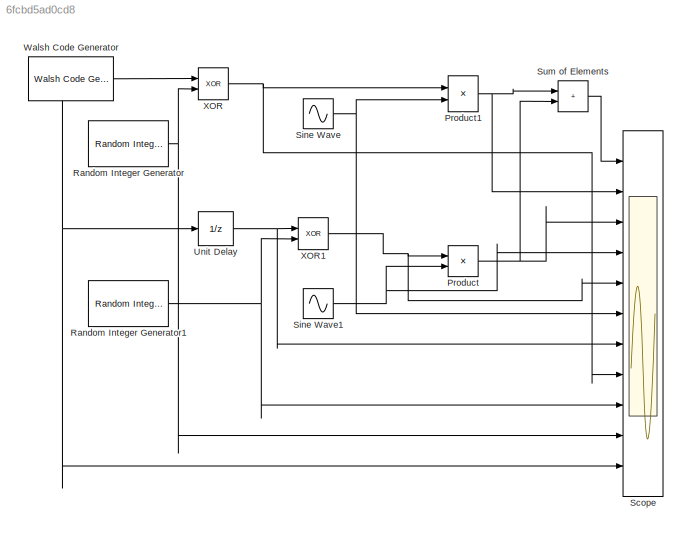
MODEL mdl_6fcbd5ad0cd8
KIND model
CONFIG AbsTol = auto
CONFIG EnableMultiTasking = off
CONFIG FixedStep = auto
CONFIG MaxStep = auto
CONFIG MinStep = auto
CONFIG RelTol = 1e-3
CONFIG SampleTimeConstraint = Unconstrained
CONFIG SolverName = VariableStepAuto
CONFIG StartTime = 0.0
CONFIG StopTime = 0.128
BLOCK [Product] Product
  Ports = [2, 1]
BLOCK [Product] Product1
  Ports = [2, 1]
BLOCK [Reference] Random Integer Generator  REF=commrandsrc3/Random Integer
Generator
  Ports = [0, 1]
  SourceBlock = commrandsrc3/Random Integer\nGenerator
  SourceProductBaseCode = CM
  SourceType = Random Integer Generator
BLOCK [Reference] Random Integer Generator1  REF=commrandsrc3/Random Integer
Generator
  Ports = [0, 1]
  SourceBlock = commrandsrc3/Random Integer\nGenerator
  SourceProductBaseCode = CM
  SourceType = Random Integer Generator
BLOCK [Scope] Scope
  Floating = off
  NumInputPorts = 11
  Ports = [11]
  ScopeSpecificationString = Simulink.scopes.TimeScopeBlockCfg('CurrentConfiguration', extmgr.ConfigurationSet(extmgr.Configuration('Core','General UI',true),extmgr.Configuration('Core','Source UI',true),extmgr.Configuration('Sources','WiredSimulink',true),extmgr.Configuration('Visuals','Time Domain',true,'SerializedDisplays',{struct('MinYLimReal','-2.00000','MaxYLimReal','8.00000','YLabelReal','','MinYLimMag','0.00000','MaxY...<+1519ch>
BLOCK [Sin] Sine Wave
  Ports = [0, 1]
  SampleTime = 0
BLOCK [Sin] Sine Wave1
  Ports = [0, 1]
  SampleTime = 0
BLOCK [Sum] Sum of Elements
  IconShape = rectangular
  Ports = [2, 1]
BLOCK [UnitDelay] Unit Delay
  HasFrameUpgradeWarning = on
  SampleTime = -1
BLOCK [Reference] Walsh Code Generator  REF=commseqgen3/Walsh Code
Generator
  Ports = [0, 1]
  SourceBlock = commseqgen3/Walsh Code\nGenerator
  SourceProductBaseCode = CM
  SourceType = Walsh Code Generator
BLOCK [Logic] XOR
  AllPortsSameDT = off
  IconShape = distinctive
  Operator = XOR
  OutDataTypeStr = boolean
  Ports = [2, 1]
BLOCK [Logic] XOR1
  AllPortsSameDT = off
  IconShape = distinctive
  Operator = XOR
  OutDataTypeStr = boolean
  Ports = [2, 1]
NET Product1:1 -> Scope:2, Sum of Elements:1
NET Product:1 -> Scope:3, Sum of Elements:2
NET Random Integer Generator1:1 -> Scope:9, XOR1:2
NET Random Integer Generator:1 -> Scope:10, XOR:2
NET Sine Wave1:1 -> Product:2, Scope:4
NET Sine Wave:1 -> Product1:2, Scope:6
LINE Sum of Elements:1 -> Scope:1
NET Unit Delay:1 -> Scope:7, XOR1:1
NET Walsh Code Generator:1 -> Scope:11, Unit Delay:1, XOR:1
NET XOR1:1 -> Product:1, Scope:5
NET XOR:1 -> Product1:1, Scope:8
note: NET lines group one-source signal fan-out (src -> all destinations, sorted); 1:1 wires keep LINE
